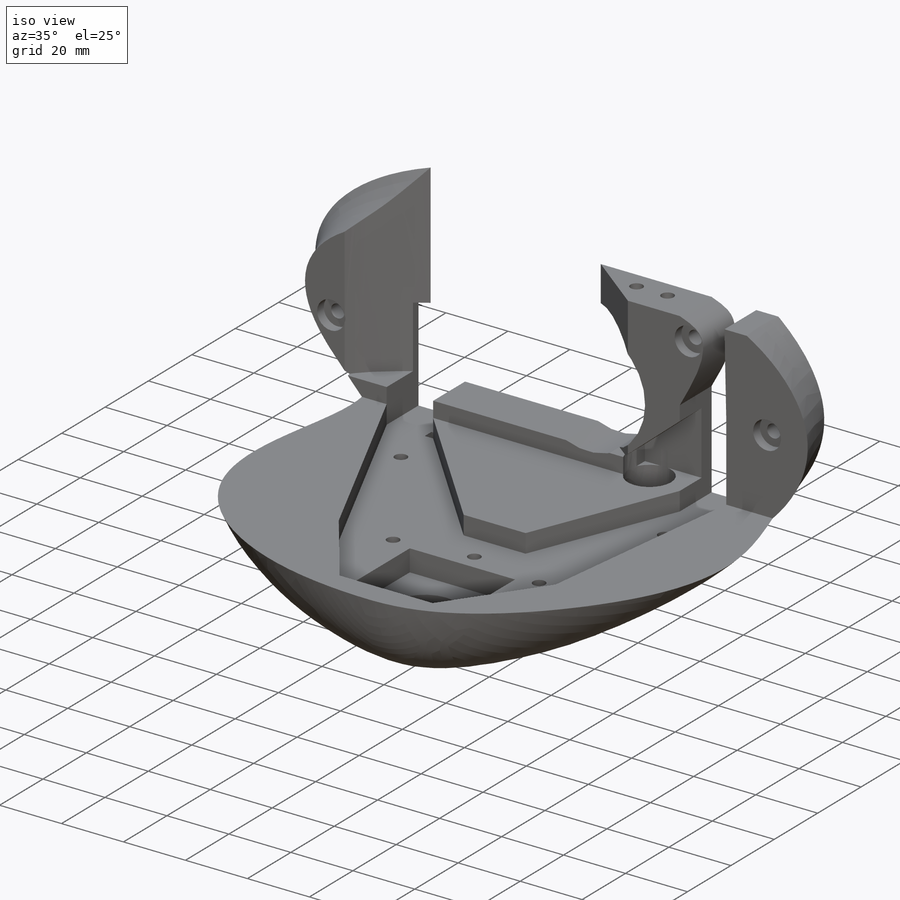
[diagram: iso view]
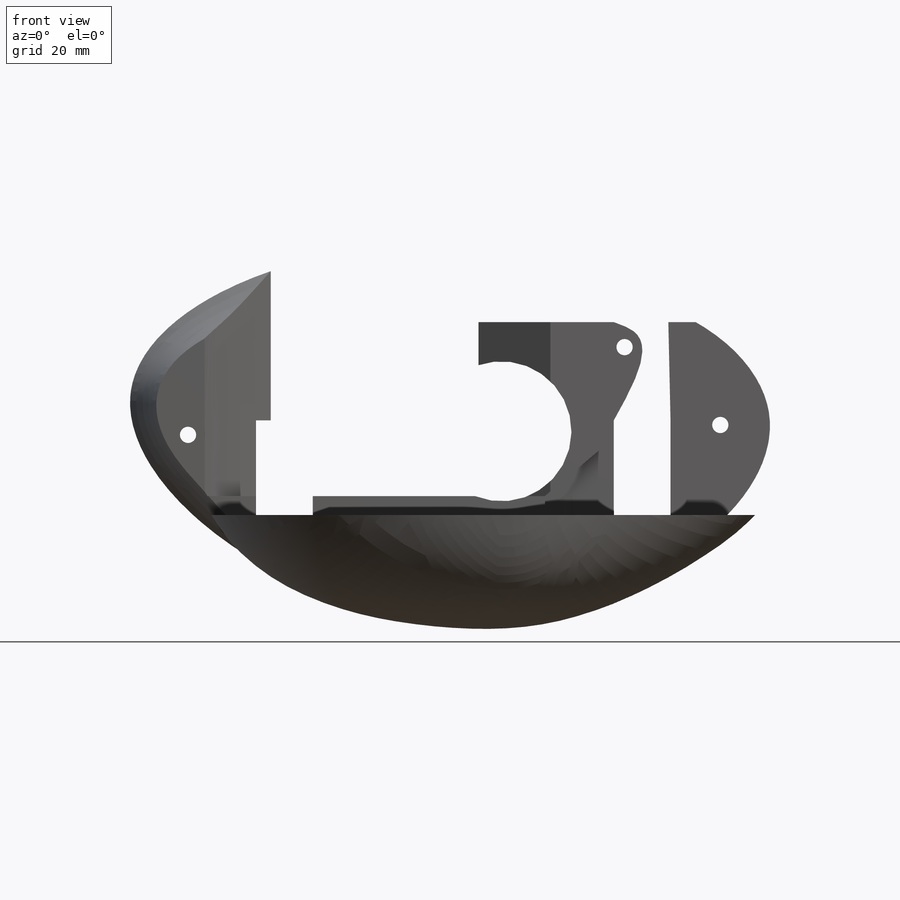
[diagram: front view]
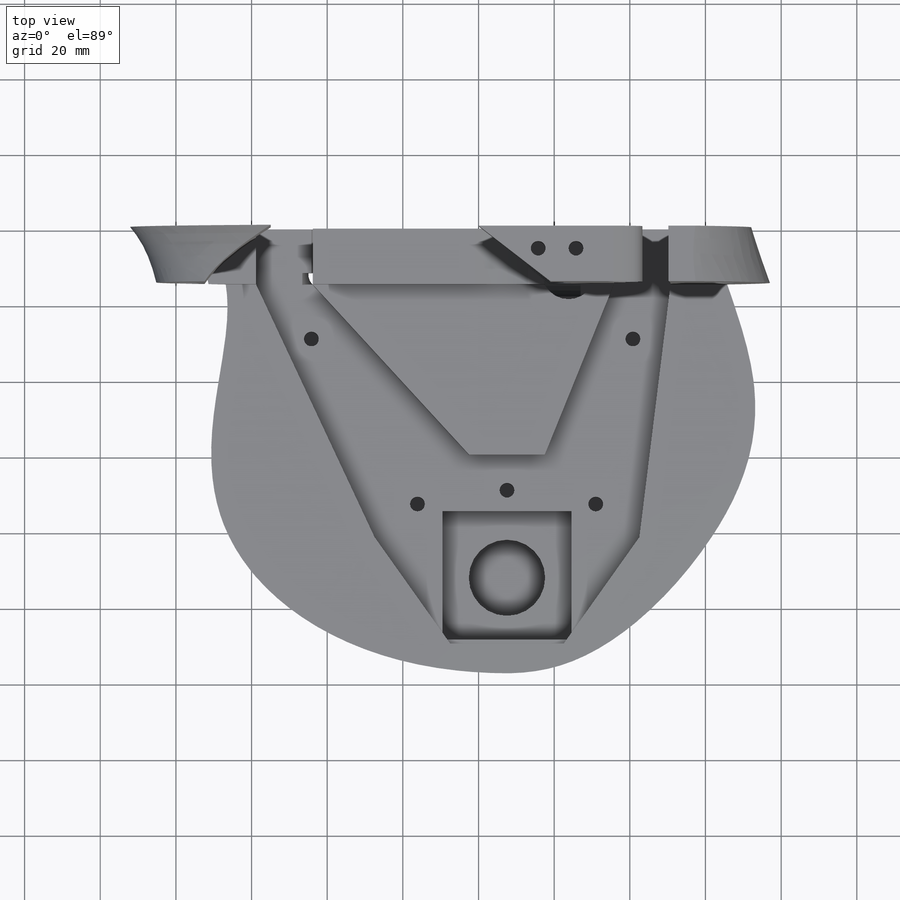
[diagram: top view]
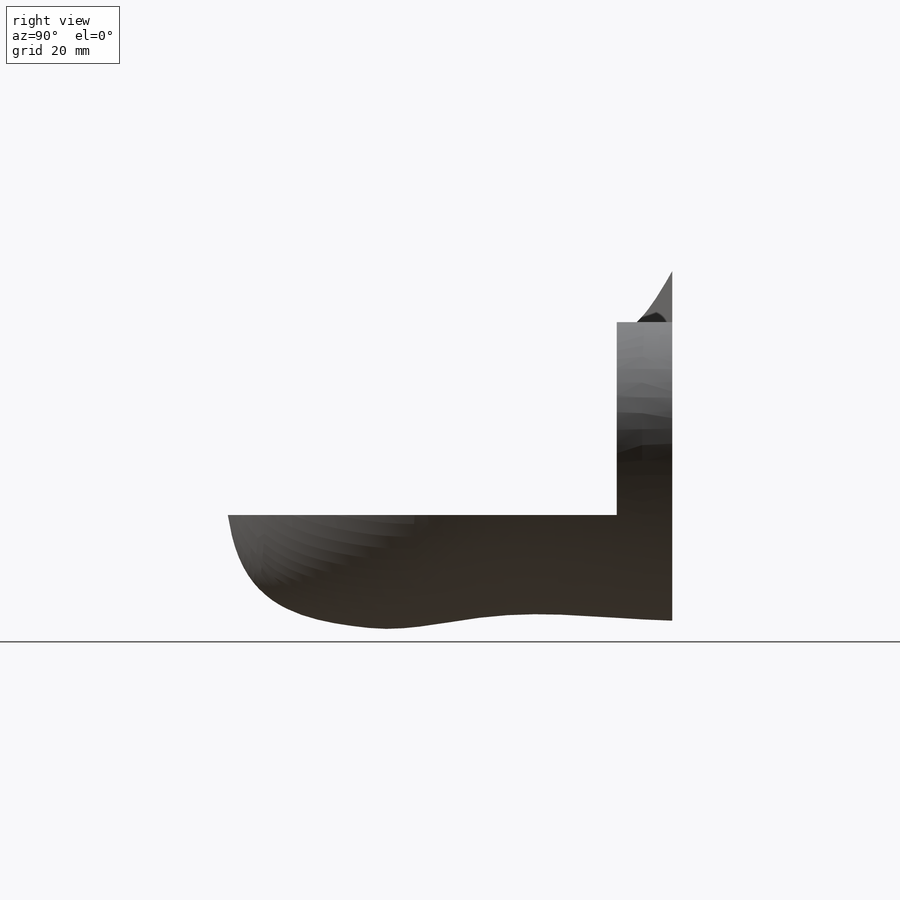
[diagram: right view]
SOLIDWORKS PART (.sldprt)
format: sldprt  version: not decoded by parser v0  size: 2,834,944 bytes
history: native  units: mm
features: sketch x13, cut_extrude x11, move_body x2, plane x2, material x1, boolean_combine x1, hole x1, fillet x1 + 1 further entry (+20 scaffold rows collapsed; 8 parser-record rows omitted)
feature tree (61):
  scaffold x20  (default folders/planes/origin — collapsed)
  material  "ABS"
  "arm top corner"
  parser-record x8  (decoder bookkeeping rows leaked as tree rows — omitted from the tree; the rows remain in map.json)
  move_body  "Body-Move/Copy2"
  boolean_combine  "Combine1"
  sketch  "Sketch1"  dims[c1.D1=30.0mm c1.D2=15.0mm c1.D3=15.0mm c1.D4=40.0mm c1.D5=~58.190958mm c2.D4=45.0mm c2.D5=50.0mm c2.D6=20.0mm c2.D7=8.0mm c2.D8=15.0mm c2.D9=70.0mm]
  cut_extrude  "Extrude2"  Depth=6mm
  sketch  "Sketch2"  dims[D1=34.0mm D2=34.0mm D3=16.5mm]
  cut_extrude  "Extrude3"  Depth=7mm
  move_body  "Body-Move/Copy3"
  sketch  "Sketch3"
  cut_extrude  "Extrude4"  Depth=10mm
  sketch  "Sketch5"  dims[D1=3.9mm]
  cut_extrude  "Cut-Extrude1"  Depth=7mm
  sketch  "Sketch6"  dims[D1=37.0mm]
  cut_extrude  "Extrude5"  Depth=15mm
  hole  "CBORE for M4 Pan Head Machine Screw1"  Diameter=4.3mm Depth=15.53905mm
  sketch  "3DSketch1"
  sketch  "Sketch7"  dims[hole-wizard template sketch: 42 standard entries collapsed; hole parameters kept: c12.Thru Hole Depth=~15.53905mm c12.C'Bore Dia.=9.0mm c12.C'Bore Depth=3.1mm]
  plane  "Plane1"
  sketch  "Sketch9"
  cut_extrude  "Cut-Extrude2"  Depth=4mm
  sketch  "Sketch12"
  cut_extrude  "Extrude6"  [1 undecoded]
  sketch  "Sketch13"  dims[D1=3.9mm D2=10.0mm D3=10.0mm D4=6.0mm]
  cut_extrude  "Extrude7"  Depth=12mm
  plane  "Plane2"  Offset=90mm
  sketch  "Sketch14"  dims[D1=12.0mm]
  cut_extrude  "Extrude8"  Depth=117mm
  sketch  "Sketch15"  dims[D1=14.0mm]
  cut_extrude  "Extrude9"  Depth=15mm
  sketch  "Sketch16"
  cut_extrude  "Extrude10"  Depth=10mm
  fillet  "Fillet1"  Radius=10mm
decode coverage: 20 of 29 modeling features carry decoded parameters; 1 rows unclassified (native names shown)
note: ~ marks probable driven/reference dimensions
note: 1 parameter value undecoded
note: suppression state not decoded; provenance and decode notes live in map.json
